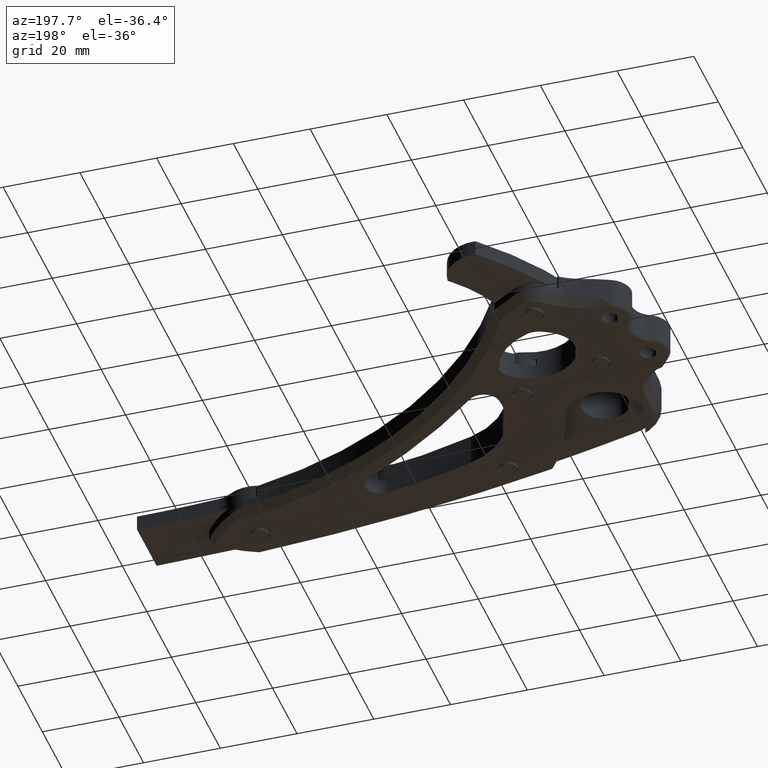
[diagram: clean part render]
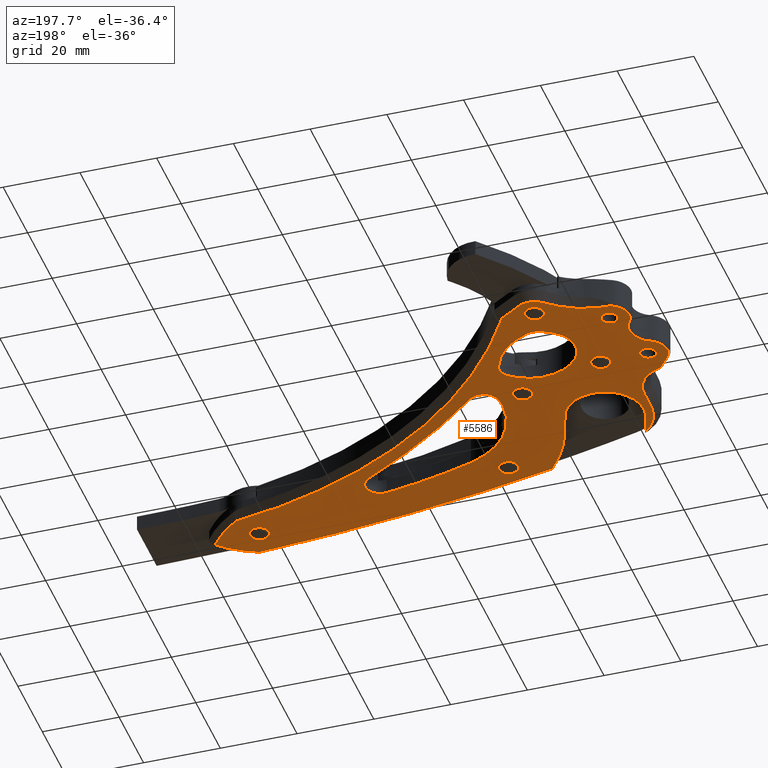
[diagram: same view with one face highlighted and labeled with its STEP entity id]
A machine part, auxiliary view. The second image highlights one B-rep face of the part: STEP entity #5586.
In plain terms, the highlighted planar face has unit normal (0, 0, 1).
Its self-contained STEP definition (entity closure, byte-faithful):
#28 = CIRCLE ( 'NONE', #5461, 0.08267716535433061731 ) ;
#29 = CARTESIAN_POINT ( 'NONE',  ( 0.7570897813879735594, 0.5923259528790508766, 0.0000000000000000000 ) ) ;
#42 = ORIENTED_EDGE ( 'NONE', *, *, #3767, .T. ) ;
#47 = CIRCLE ( 'NONE', #8968, 1.149971211732430332 ) ;
#57 = CARTESIAN_POINT ( 'NONE',  ( 3.185243714394314196, 0.1542492108641623227, 0.0000000000000000000 ) ) ;
#91 = ORIENTED_EDGE ( 'NONE', *, *, #5424, .T. ) ;
#95 = EDGE_CURVE ( 'NONE', #3956, #1817, #5602, .T. ) ;
#109 = DIRECTION ( 'NONE',  ( 0.0000000000000000000, 0.0000000000000000000, -1.000000000000000000 ) ) ;
#123 = CARTESIAN_POINT ( 'NONE',  ( -0.7122213184384932338, 0.8561135757810206526, 0.0000000000000000000 ) ) ;
#133 = AXIS2_PLACEMENT_3D ( 'NONE', #123, #3365, #2578 ) ;
#140 = CARTESIAN_POINT ( 'NONE',  ( 3.809795796438940840, -0.8201477541464271548, 0.0000000000000000000 ) ) ;
#159 = VERTEX_POINT ( 'NONE', #4506 ) ;
#171 = VERTEX_POINT ( 'NONE', #5964 ) ;
#190 = AXIS2_PLACEMENT_3D ( 'NONE', #1953, #9317, #7218 ) ;
#223 = AXIS2_PLACEMENT_3D ( 'NONE', #2445, #7726, #8127 ) ;
#232 = CIRCLE ( 'NONE', #1567, 0.09842519685039399779 ) ;
#340 = VECTOR ( 'NONE', #3633, 39.37007874015748854 ) ;
#348 = CIRCLE ( 'NONE', #3233, 0.8364771727098803122 ) ;
#350 = ORIENTED_EDGE ( 'NONE', *, *, #7735, .T. ) ;
#377 = ORIENTED_EDGE ( 'NONE', *, *, #3238, .T. ) ;
#393 = VERTEX_POINT ( 'NONE', #29 ) ;
#471 = EDGE_CURVE ( 'NONE', #821, #484, #7017, .T. ) ;
#484 = VERTEX_POINT ( 'NONE', #4433 ) ;
#538 = VERTEX_POINT ( 'NONE', #954 ) ;
#580 = CARTESIAN_POINT ( 'NONE',  ( 0.7477740345579309000, 1.090413955512788524, 0.0000000000000000000 ) ) ;
#609 = ORIENTED_EDGE ( 'NONE', *, *, #4335, .T. ) ;
#617 = DIRECTION ( 'NONE',  ( -0.3090169943749412895, 0.9510565162951555296, 0.0000000000000000000 ) ) ;
#618 = ORIENTED_EDGE ( 'NONE', *, *, #4553, .T. ) ;
#754 = EDGE_LOOP ( 'NONE', ( #7963, #1702, #3854, #91, #4201, #9229, #9529 ) ) ;
#774 = VERTEX_POINT ( 'NONE', #7919 ) ;
#777 = DIRECTION ( 'NONE',  ( 0.0000000000000000000, 0.0000000000000000000, 1.000000000000000000 ) ) ;
#785 = VERTEX_POINT ( 'NONE', #1675 ) ;
#787 = CARTESIAN_POINT ( 'NONE',  ( 0.4698172945048773030, 0.8673091202993842286, 0.0000000000000000000 ) ) ;
#821 = VERTEX_POINT ( 'NONE', #9735 ) ;
#846 = DIRECTION ( 'NONE',  ( 0.0000000000000000000, 0.0000000000000000000, 1.000000000000000000 ) ) ;
#859 = VERTEX_POINT ( 'NONE', #7512 ) ;
#868 = DIRECTION ( 'NONE',  ( 1.000000000000000000, 3.388131789017198723E-21, 0.0000000000000000000 ) ) ;
#939 = AXIS2_PLACEMENT_3D ( 'NONE', #3667, #5972, #1493 ) ;
#945 = DIRECTION ( 'NONE',  ( 1.000000000000000000, 0.0000000000000000000, 0.0000000000000000000 ) ) ;
#946 = DIRECTION ( 'NONE',  ( 1.000000000000000000, 0.0000000000000000000, 0.0000000000000000000 ) ) ;
#948 = EDGE_CURVE ( 'NONE', #7948, #8245, #8074, .T. ) ;
#954 = CARTESIAN_POINT ( 'NONE',  ( -0.3260145569330838988, 0.8560912057457989999, 0.0000000000000000000 ) ) ;
#964 = AXIS2_PLACEMENT_3D ( 'NONE', #4274, #9741, #2310 ) ;
#991 = DIRECTION ( 'NONE',  ( 0.0000000000000000000, 0.0000000000000000000, 1.000000000000000000 ) ) ;
#1008 = ORIENTED_EDGE ( 'NONE', *, *, #1176, .T. ) ;
#1010 = ORIENTED_EDGE ( 'NONE', *, *, #5360, .T. ) ;
#1012 = ORIENTED_EDGE ( 'NONE', *, *, #5697, .T. ) ;
#1019 = AXIS2_PLACEMENT_3D ( 'NONE', #6170, #7045, #5280 ) ;
#1026 = DIRECTION ( 'NONE',  ( -1.000000000000000000, 0.0000000000000000000, 0.0000000000000000000 ) ) ;
#1027 = VERTEX_POINT ( 'NONE', #8357 ) ;
#1028 = DIRECTION ( 'NONE',  ( 0.0000000000000000000, 0.0000000000000000000, 1.000000000000000000 ) ) ;
#1057 = CIRCLE ( 'NONE', #2351, 0.09842519685039433086 ) ;
#1109 = CARTESIAN_POINT ( 'NONE',  ( 0.2510675884054368590, 1.183635199904236934, 0.0000000000000000000 ) ) ;
#1145 = CARTESIAN_POINT ( 'NONE',  ( -0.6295441530841630051, 0.8561135757810206526, 0.0000000000000000000 ) ) ;
#1154 = AXIS2_PLACEMENT_3D ( 'NONE', #2347, #5466, #946 ) ;
#1176 = EDGE_CURVE ( 'NONE', #4756, #821, #2634, .T. ) ;
#1216 = CIRCLE ( 'NONE', #9758, 0.08267716535433061731 ) ;
#1232 = CARTESIAN_POINT ( 'NONE',  ( 1.071273310205732354, 0.5421025113042482468, 0.0000000000000000000 ) ) ;
#1258 = CARTESIAN_POINT ( 'NONE',  ( 0.0000000000000000000, 0.0000000000000000000, 0.0000000000000000000 ) ) ;
#1272 = AXIS2_PLACEMENT_3D ( 'NONE', #6043, #7836, #1554 ) ;
#1344 = DIRECTION ( 'NONE',  ( 0.0000000000000000000, 0.0000000000000000000, 1.000000000000000000 ) ) ;
#1345 = CIRCLE ( 'NONE', #8118, 0.09842519685039358146 ) ;
#1348 = EDGE_LOOP ( 'NONE', ( #2392, #377 ) ) ;
#1418 = DIRECTION ( 'NONE',  ( 1.000000000000000000, -2.045664476387769801E-15, 0.0000000000000000000 ) ) ;
#1474 = AXIS2_PLACEMENT_3D ( 'NONE', #1109, #3062, #9643 ) ;
#1490 = ORIENTED_EDGE ( 'NONE', *, *, #7768, .T. ) ;
#1493 = DIRECTION ( 'NONE',  ( 1.000000000000000000, 0.0000000000000000000, 0.0000000000000000000 ) ) ;
#1495 = VERTEX_POINT ( 'NONE', #8562 ) ;
#1516 = EDGE_CURVE ( 'NONE', #2557, #4297, #6252, .T. ) ;
#1526 = DIRECTION ( 'NONE',  ( 1.000000000000000000, 0.0000000000000000000, 0.0000000000000000000 ) ) ;
#1528 = EDGE_CURVE ( 'NONE', #3202, #4008, #4751, .T. ) ;
#1542 = CIRCLE ( 'NONE', #4605, 0.09842519685039365085 ) ;
#1550 = CIRCLE ( 'NONE', #9135, 0.3937007874015751030 ) ;
#1554 = DIRECTION ( 'NONE',  ( 1.000000000000000000, 0.0000000000000000000, 0.0000000000000000000 ) ) ;
#1555 = DIRECTION ( 'NONE',  ( 0.0000000000000000000, -0.0000000000000000000, 1.000000000000000000 ) ) ;
#1567 = AXIS2_PLACEMENT_3D ( 'NONE', #4208, #2040, #6515 ) ;
#1568 = DIRECTION ( 'NONE',  ( 0.0000000000000000000, 0.0000000000000000000, -1.000000000000000000 ) ) ;
#1575 = EDGE_CURVE ( 'NONE', #8242, #1817, #2293, .T. ) ;
#1586 = AXIS2_PLACEMENT_3D ( 'NONE', #140, #8422, #7704 ) ;
#1598 = VECTOR ( 'NONE', #2454, 39.37007874015748143 ) ;
#1650 = CARTESIAN_POINT ( 'NONE',  ( -0.8295397508085289306, 0.2422604601360806575, 0.0000000000000000000 ) ) ;
#1666 = DIRECTION ( 'NONE',  ( -0.0000000000000000000, -0.0000000000000000000, -1.000000000000000000 ) ) ;
#1675 = CARTESIAN_POINT ( 'NONE',  ( -0.6979832910037895299, 1.409456169075488319, 0.0000000000000000000 ) ) ;
#1686 = FACE_BOUND ( 'NONE', #5032, .T. ) ;
#1693 = EDGE_LOOP ( 'NONE', ( #4562, #3643 ) ) ;
#1702 = ORIENTED_EDGE ( 'NONE', *, *, #2967, .T. ) ;
#1747 = DIRECTION ( 'NONE',  ( 0.0000000000000000000, 0.0000000000000000000, 1.000000000000000000 ) ) ;
#1817 = VERTEX_POINT ( 'NONE', #3635 ) ;
#1818 = CARTESIAN_POINT ( 'NONE',  ( -0.3937007874015747699, -1.333910153156377246E-21, 0.0000000000000000000 ) ) ;
#1905 = CARTESIAN_POINT ( 'NONE',  ( -0.6214355804752841328, 1.700027296306607205, 0.0000000000000000000 ) ) ;
#1929 = FACE_BOUND ( 'NONE', #1693, .T. ) ;
#1931 = CARTESIAN_POINT ( 'NONE',  ( 0.0000000000000000000, 0.0000000000000000000, 0.0000000000000000000 ) ) ;
#1934 = VERTEX_POINT ( 'NONE', #7466 ) ;
#1943 = ORIENTED_EDGE ( 'NONE', *, *, #6217, .T. ) ;
#1953 = CARTESIAN_POINT ( 'NONE',  ( 0.1453584754090656295, 1.816308304809195917, 0.0000000000000000000 ) ) ;
#2040 = DIRECTION ( 'NONE',  ( 0.0000000000000000000, 0.0000000000000000000, 1.000000000000000000 ) ) ;
#2058 = CIRCLE ( 'NONE', #5918, 0.1500000000000002998 ) ;
#2133 = DIRECTION ( 'NONE',  ( 1.000000000000000000, 1.953895528049144136E-14, 0.0000000000000000000 ) ) ;
#2134 = CARTESIAN_POINT ( 'NONE',  ( 1.743043630582140402, 0.4603334760457821750, 0.0000000000000000000 ) ) ;
#2135 = DIRECTION ( 'NONE',  ( 1.000000000000000000, 0.0000000000000000000, 0.0000000000000000000 ) ) ;
#2143 = CARTESIAN_POINT ( 'NONE',  ( 1.157574541934061951, -0.5242233746016295992, 0.0000000000000000000 ) ) ;
#2163 = AXIS2_PLACEMENT_3D ( 'NONE', #1258, #2560, #868 ) ;
#2185 = FACE_BOUND ( 'NONE', #754, .T. ) ;
#2201 = ORIENTED_EDGE ( 'NONE', *, *, #8317, .T. ) ;
#2216 = AXIS2_PLACEMENT_3D ( 'NONE', #6564, #8853, #3779 ) ;
#2224 = DIRECTION ( 'NONE',  ( 1.000000000000000000, 0.0000000000000000000, 0.0000000000000000000 ) ) ;
#2293 = CIRCLE ( 'NONE', #6882, 1.574803149606300412 ) ;
#2310 = DIRECTION ( 'NONE',  ( 1.000000000000000000, 0.0000000000000000000, 0.0000000000000000000 ) ) ;
#2347 = CARTESIAN_POINT ( 'NONE',  ( 0.5996707364089126635, 1.036883987145292174, 0.0000000000000000000 ) ) ;
#2351 = AXIS2_PLACEMENT_3D ( 'NONE', #2432, #1344, #945 ) ;
#2365 = AXIS2_PLACEMENT_3D ( 'NONE', #6592, #4615, #4939 ) ;
#2392 = ORIENTED_EDGE ( 'NONE', *, *, #7324, .T. ) ;
#2396 = CARTESIAN_POINT ( 'NONE',  ( -0.5315916858345430818, 1.520990545755357193, 0.0000000000000000000 ) ) ;
#2404 = EDGE_CURVE ( 'NONE', #1027, #785, #7453, .T. ) ;
#2432 = CARTESIAN_POINT ( 'NONE',  ( 3.809795796438940840, -0.8201477541464271548, 0.0000000000000000000 ) ) ;
#2445 = CARTESIAN_POINT ( 'NONE',  ( -0.7122213184384932338, 0.8561135757810206526, 0.0000000000000000000 ) ) ;
#2454 = DIRECTION ( 'NONE',  ( 0.3090169943749421222, -0.9510565162951553075, 0.0000000000000000000 ) ) ;
#2474 = VERTEX_POINT ( 'NONE', #3953 ) ;
#2500 = DIRECTION ( 'NONE',  ( 0.0000000000000000000, 0.0000000000000000000, 1.000000000000000000 ) ) ;
#2557 = VERTEX_POINT ( 'NONE', #8019 ) ;
#2560 = DIRECTION ( 'NONE',  ( -0.0000000000000000000, -0.0000000000000000000, -1.000000000000000000 ) ) ;
#2578 = DIRECTION ( 'NONE',  ( 1.000000000000000000, 0.0000000000000000000, 0.0000000000000000000 ) ) ;
#2589 = CARTESIAN_POINT ( 'NONE',  ( 1.059149345083668647, -0.5242233746016295992, 0.0000000000000000000 ) ) ;
#2613 = CIRCLE ( 'NONE', #7649, 0.3543307086614178036 ) ;
#2634 = CIRCLE ( 'NONE', #2736, 7.086614177537938986 ) ;
#2647 = FACE_OUTER_BOUND ( 'NONE', #7366, .T. ) ;
#2714 = CARTESIAN_POINT ( 'NONE',  ( 1.255999738784455255, -0.5242233746016295992, 0.0000000000000000000 ) ) ;
#2736 = AXIS2_PLACEMENT_3D ( 'NONE', #8349, #109, #6501 ) ;
#2807 = ORIENTED_EDGE ( 'NONE', *, *, #948, .F. ) ;
#2833 = DIRECTION ( 'NONE',  ( 1.000000000000000000, 0.0000000000000000000, 0.0000000000000000000 ) ) ;
#2869 = DIRECTION ( 'NONE',  ( -0.0000000000000000000, -0.0000000000000000000, -1.000000000000000000 ) ) ;
#2880 = CARTESIAN_POINT ( 'NONE',  ( 3.185243714394314196, 0.1542492108641623227, 0.0000000000000000000 ) ) ;
#2897 = CARTESIAN_POINT ( 'NONE',  ( -0.2275893600826904006, 0.8560912057457989999, 0.0000000000000000000 ) ) ;
#2940 = CARTESIAN_POINT ( 'NONE',  ( 0.4595938631329188895, -0.1404419555242772677, 0.0000000000000000000 ) ) ;
#2949 = DIRECTION ( 'NONE',  ( 0.0000000000000000000, 0.0000000000000000000, 1.000000000000000000 ) ) ;
#2967 = EDGE_CURVE ( 'NONE', #4008, #2557, #8734, .T. ) ;
#3010 = CIRCLE ( 'NONE', #7764, 0.09842519685039324839 ) ;
#3012 = VERTEX_POINT ( 'NONE', #6035 ) ;
#3062 = DIRECTION ( 'NONE',  ( 0.0000000000000000000, 0.0000000000000000000, 1.000000000000000000 ) ) ;
#3079 = CARTESIAN_POINT ( 'NONE',  ( 0.0000000000000000000, 0.0000000000000000000, 0.0000000000000000000 ) ) ;
#3085 = CARTESIAN_POINT ( 'NONE',  ( -0.1291641632322969024, 0.8560912057457989999, 0.0000000000000000000 ) ) ;
#3125 = EDGE_CURVE ( 'NONE', #9390, #171, #7790, .T. ) ;
#3173 = EDGE_CURVE ( 'NONE', #171, #3202, #9314, .T. ) ;
#3177 = CARTESIAN_POINT ( 'NONE',  ( 0.2437836722594595718, 1.816308304809195917, 0.0000000000000000000 ) ) ;
#3189 = VERTEX_POINT ( 'NONE', #4231 ) ;
#3200 = DIRECTION ( 'NONE',  ( 1.000000000000000000, 0.0000000000000000000, 0.0000000000000000000 ) ) ;
#3202 = VERTEX_POINT ( 'NONE', #5276 ) ;
#3233 = AXIS2_PLACEMENT_3D ( 'NONE', #8740, #6386, #8134 ) ;
#3238 = EDGE_CURVE ( 'NONE', #5357, #3453, #1057, .T. ) ;
#3294 = EDGE_CURVE ( 'NONE', #159, #7948, #6343, .T. ) ;
#3307 = AXIS2_PLACEMENT_3D ( 'NONE', #7368, #991, #3931 ) ;
#3310 = AXIS2_PLACEMENT_3D ( 'NONE', #3079, #1568, #5392 ) ;
#3365 = DIRECTION ( 'NONE',  ( 0.0000000000000000000, 0.0000000000000000000, 1.000000000000000000 ) ) ;
#3390 = ORIENTED_EDGE ( 'NONE', *, *, #7187, .T. ) ;
#3404 = CARTESIAN_POINT ( 'NONE',  ( -0.4489145204802125200, 1.520990545755357193, 0.0000000000000000000 ) ) ;
#3453 = VERTEX_POINT ( 'NONE', #7884 ) ;
#3461 = CARTESIAN_POINT ( 'NONE',  ( 0.04693327855867171494, 1.816308304809195917, 0.0000000000000000000 ) ) ;
#3471 = VERTEX_POINT ( 'NONE', #1145 ) ;
#3535 = EDGE_CURVE ( 'NONE', #6305, #9390, #4945, .T. ) ;
#3618 = CARTESIAN_POINT ( 'NONE',  ( 0.6586645845375800334, 0.5923259528790508766, 0.0000000000000000000 ) ) ;
#3628 = DIRECTION ( 'NONE',  ( 1.000000000000000000, 0.0000000000000000000, 0.0000000000000000000 ) ) ;
#3633 = DIRECTION ( 'NONE',  ( 0.8364794856834462111, -0.5479982390763287192, 0.0000000000000000000 ) ) ;
#3635 = CARTESIAN_POINT ( 'NONE',  ( 0.7579249503705006719, -0.6743179917541789470, 0.0000000000000000000 ) ) ;
#3636 = CARTESIAN_POINT ( 'NONE',  ( -0.5975223029967786648, 2.576600349123360445, 0.0000000000000000000 ) ) ;
#3643 = ORIENTED_EDGE ( 'NONE', *, *, #9509, .T. ) ;
#3666 = DIRECTION ( 'NONE',  ( 1.000000000000000000, 0.0000000000000000000, 0.0000000000000000000 ) ) ;
#3667 = CARTESIAN_POINT ( 'NONE',  ( 3.300288138568478136, 5.284242856078850359, 0.0000000000000000000 ) ) ;
#3695 = DIRECTION ( 'NONE',  ( -0.0000000000000000000, -0.0000000000000000000, -1.000000000000000000 ) ) ;
#3701 = FACE_BOUND ( 'NONE', #4999, .T. ) ;
#3729 = CARTESIAN_POINT ( 'NONE',  ( 0.4732308865129680187, 1.836822568178638759, 0.0000000000000000000 ) ) ;
#3745 = EDGE_LOOP ( 'NONE', ( #1012, #7375 ) ) ;
#3767 = EDGE_CURVE ( 'NONE', #3012, #3471, #7060, .T. ) ;
#3776 = DIRECTION ( 'NONE',  ( 1.000000000000000000, 0.0000000000000000000, 0.0000000000000000000 ) ) ;
#3779 = DIRECTION ( 'NONE',  ( 1.000000000000000000, 6.176506603871220977E-15, 0.0000000000000000000 ) ) ;
#3854 = ORIENTED_EDGE ( 'NONE', *, *, #1516, .T. ) ;
#3879 = DIRECTION ( 'NONE',  ( -0.0000000000000000000, -0.0000000000000000000, -1.000000000000000000 ) ) ;
#3900 = CARTESIAN_POINT ( 'NONE',  ( 3.903359180932122641, -1.112918685400203334, 0.0000000000000000000 ) ) ;
#3920 = VERTEX_POINT ( 'NONE', #6768 ) ;
#3926 = DIRECTION ( 'NONE',  ( 1.000000000000000000, 0.0000000000000000000, 0.0000000000000000000 ) ) ;
#3931 = DIRECTION ( 'NONE',  ( 1.000000000000000000, 0.0000000000000000000, 0.0000000000000000000 ) ) ;
#3932 = VERTEX_POINT ( 'NONE', #2589 ) ;
#3953 = CARTESIAN_POINT ( 'NONE',  ( -0.6002771942893025958, 1.710462998019637082, 0.0000000000000000000 ) ) ;
#3956 = VERTEX_POINT ( 'NONE', #3900 ) ;
#4008 = VERTEX_POINT ( 'NONE', #7023 ) ;
#4079 = ORIENTED_EDGE ( 'NONE', *, *, #2404, .T. ) ;
#4085 = EDGE_CURVE ( 'NONE', #9592, #393, #8713, .T. ) ;
#4164 = AXIS2_PLACEMENT_3D ( 'NONE', #787, #5913, #2224 ) ;
#4176 = AXIS2_PLACEMENT_3D ( 'NONE', #4485, #2869, #5038 ) ;
#4201 = ORIENTED_EDGE ( 'NONE', *, *, #3535, .T. ) ;
#4208 = CARTESIAN_POINT ( 'NONE',  ( 0.1453584754090656295, 1.816308304809195917, 0.0000000000000000000 ) ) ;
#4231 = CARTESIAN_POINT ( 'NONE',  ( 0.007797715156651996264, 1.957093144947546604, 0.0000000000000000000 ) ) ;
#4260 = CIRCLE ( 'NONE', #2216, 1.149971211732420340 ) ;
#4270 = CARTESIAN_POINT ( 'NONE',  ( 1.957320660448124139, 0.3461989804992516850, 0.0000000000000000000 ) ) ;
#4274 = CARTESIAN_POINT ( 'NONE',  ( 0.6586645845375800334, 0.5923259528790508766, 0.0000000000000000000 ) ) ;
#4297 = VERTEX_POINT ( 'NONE', #5241 ) ;
#4335 = EDGE_CURVE ( 'NONE', #4875, #7074, #9054, .T. ) ;
#4343 = VECTOR ( 'NONE', #617, 39.37007874015748854 ) ;
#4433 = CARTESIAN_POINT ( 'NONE',  ( 0.9126951351013545821, 0.5614049186866851837, 0.0000000000000000000 ) ) ;
#4451 = VERTEX_POINT ( 'NONE', #1905 ) ;
#4485 = CARTESIAN_POINT ( 'NONE',  ( 5.029460358332304537, 18.46101461764844487, 0.0000000000000000000 ) ) ;
#4506 = CARTESIAN_POINT ( 'NONE',  ( -0.2937314297079321457, -0.3700301252636425953, 0.0000000000000000000 ) ) ;
#4553 = EDGE_CURVE ( 'NONE', #3189, #9024, #9170, .T. ) ;
#4562 = ORIENTED_EDGE ( 'NONE', *, *, #4085, .T. ) ;
#4600 = LINE ( 'NONE', #5624, #340 ) ;
#4605 = AXIS2_PLACEMENT_3D ( 'NONE', #3618, #2949, #3776 ) ;
#4615 = DIRECTION ( 'NONE',  ( -0.0000000000000000000, -0.0000000000000000000, -1.000000000000000000 ) ) ;
#4652 = VERTEX_POINT ( 'NONE', #3085 ) ;
#4730 = DIRECTION ( 'NONE',  ( 0.0000000000000000000, 0.0000000000000000000, 1.000000000000000000 ) ) ;
#4751 = CIRCLE ( 'NONE', #4164, 0.7086614173228351632 ) ;
#4756 = VERTEX_POINT ( 'NONE', #8231 ) ;
#4789 = ORIENTED_EDGE ( 'NONE', *, *, #3294, .F. ) ;
#4800 = CARTESIAN_POINT ( 'NONE',  ( -0.5315916858345430818, 1.520990545755357193, 0.0000000000000000000 ) ) ;
#4803 = EDGE_CURVE ( 'NONE', #859, #8242, #9375, .T. ) ;
#4842 = CIRCLE ( 'NONE', #2163, 0.4724409448818899793 ) ;
#4852 = AXIS2_PLACEMENT_3D ( 'NONE', #3636, #8108, #2135 ) ;
#4863 = ORIENTED_EDGE ( 'NONE', *, *, #4803, .F. ) ;
#4875 = VERTEX_POINT ( 'NONE', #6092 ) ;
#4882 = ORIENTED_EDGE ( 'NONE', *, *, #5299, .T. ) ;
#4918 = DIRECTION ( 'NONE',  ( 1.000000000000000000, 0.0000000000000000000, 0.0000000000000000000 ) ) ;
#4939 = DIRECTION ( 'NONE',  ( 1.000000000000000000, -1.363776317591853108E-15, 0.0000000000000000000 ) ) ;
#4945 = CIRCLE ( 'NONE', #1154, 0.1574802985647475728 ) ;
#4959 = EDGE_CURVE ( 'NONE', #8286, #1934, #6663, .T. ) ;
#4999 = EDGE_LOOP ( 'NONE', ( #1943, #9234 ) ) ;
#5005 = ORIENTED_EDGE ( 'NONE', *, *, #8516, .T. ) ;
#5032 = EDGE_LOOP ( 'NONE', ( #42, #6319 ) ) ;
#5038 = DIRECTION ( 'NONE',  ( 1.000000000000000000, 0.0000000000000000000, 0.0000000000000000000 ) ) ;
#5086 = DIRECTION ( 'NONE',  ( 0.0000000000000000000, 0.0000000000000000000, 1.000000000000000000 ) ) ;
#5142 = ORIENTED_EDGE ( 'NONE', *, *, #7390, .T. ) ;
#5174 = CARTESIAN_POINT ( 'NONE',  ( 0.1460438376730443522, 0.1706298710314975986, 0.0000000000000000000 ) ) ;
#5198 = CIRCLE ( 'NONE', #3307, 0.09842519685039324839 ) ;
#5227 = CIRCLE ( 'NONE', #1019, 4.803149606299218277 ) ;
#5241 = CARTESIAN_POINT ( 'NONE',  ( -0.01254893517055393273, 0.9951541362393566681, 0.0000000000000000000 ) ) ;
#5276 = CARTESIAN_POINT ( 'NONE',  ( 0.1708816122455786846, 1.509834187728021915, 0.0000000000000000000 ) ) ;
#5280 = DIRECTION ( 'NONE',  ( 1.000000000000000000, 0.0000000000000000000, 0.0000000000000000000 ) ) ;
#5299 = EDGE_CURVE ( 'NONE', #9266, #5440, #8091, .T. ) ;
#5322 = DIRECTION ( 'NONE',  ( 1.000000000000000000, 0.0000000000000000000, 0.0000000000000000000 ) ) ;
#5342 = ORIENTED_EDGE ( 'NONE', *, *, #6410, .T. ) ;
#5357 = VERTEX_POINT ( 'NONE', #6889 ) ;
#5360 = EDGE_CURVE ( 'NONE', #5440, #4756, #2058, .T. ) ;
#5370 = CARTESIAN_POINT ( 'NONE',  ( -0.3744316993288016038, -0.1216602340058825088, 0.0000000000000000000 ) ) ;
#5372 = EDGE_CURVE ( 'NONE', #774, #3956, #47, .T. ) ;
#5379 = EDGE_CURVE ( 'NONE', #3471, #3012, #7618, .T. ) ;
#5392 = DIRECTION ( 'NONE',  ( -1.000000000000000000, -3.388131789017198347E-21, 0.0000000000000000000 ) ) ;
#5424 = EDGE_CURVE ( 'NONE', #4297, #6305, #9366, .T. ) ;
#5440 = VERTEX_POINT ( 'NONE', #8040 ) ;
#5461 = AXIS2_PLACEMENT_3D ( 'NONE', #2396, #7634, #7315 ) ;
#5466 = DIRECTION ( 'NONE',  ( 0.0000000000000000000, 0.0000000000000000000, 1.000000000000000000 ) ) ;
#5488 = DIRECTION ( 'NONE',  ( 1.000000000000000000, 0.0000000000000000000, 0.0000000000000000000 ) ) ;
#5586 = ADVANCED_FACE ( 'NONE', ( #2647, #2185, #5939, #7957, #1929, #9700, #7724, #5693, #3701, #1686 ), #6538, .F. ) ;
#5602 = CIRCLE ( 'NONE', #4176, 19.60629921259844011 ) ;
#5624 = CARTESIAN_POINT ( 'NONE',  ( 3.142094246750513076, 0.08838468443240092565, 0.0000000000000000000 ) ) ;
#5625 = CARTESIAN_POINT ( 'NONE',  ( 1.486071726422548478, -0.3356938481946044606, 0.0000000000000000000 ) ) ;
#5640 = EDGE_CURVE ( 'NONE', #8808, #7128, #5227, .T. ) ;
#5693 = FACE_BOUND ( 'NONE', #1348, .T. ) ;
#5697 = EDGE_CURVE ( 'NONE', #3932, #9134, #3010, .T. ) ;
#5780 = CIRCLE ( 'NONE', #9275, 0.09842519685039399779 ) ;
#5804 = AXIS2_PLACEMENT_3D ( 'NONE', #8937, #4730, #3926 ) ;
#5877 = EDGE_CURVE ( 'NONE', #4451, #2474, #9352, .T. ) ;
#5905 = EDGE_CURVE ( 'NONE', #4652, #538, #1345, .T. ) ;
#5913 = DIRECTION ( 'NONE',  ( 0.0000000000000000000, 0.0000000000000000000, 1.000000000000000000 ) ) ;
#5918 = AXIS2_PLACEMENT_3D ( 'NONE', #9285, #8666, #9637 ) ;
#5939 = FACE_BOUND ( 'NONE', #9737, .T. ) ;
#5964 = CARTESIAN_POINT ( 'NONE',  ( 0.3203078328075648629, 1.516672676733199943, 0.0000000000000000000 ) ) ;
#5965 = CARTESIAN_POINT ( 'NONE',  ( -0.4752941509376885643, 0.2344947616709118221, 0.0000000000000000000 ) ) ;
#5972 = DIRECTION ( 'NONE',  ( 0.0000000000000000000, 0.0000000000000000000, 1.000000000000000000 ) ) ;
#6035 = CARTESIAN_POINT ( 'NONE',  ( -0.7948984837928234626, 0.8561135757810206526, 0.0000000000000000000 ) ) ;
#6042 = ORIENTED_EDGE ( 'NONE', *, *, #8345, .F. ) ;
#6043 = CARTESIAN_POINT ( 'NONE',  ( 0.08130912104371064431, 0.8495290488859255085, 0.0000000000000000000 ) ) ;
#6078 = ORIENTED_EDGE ( 'NONE', *, *, #8664, .T. ) ;
#6092 = CARTESIAN_POINT ( 'NONE',  ( -0.4718879576880469773, -0.02285173494283518000, 0.0000000000000000000 ) ) ;
#6116 = AXIS2_PLACEMENT_3D ( 'NONE', #2134, #7211, #1526 ) ;
#6127 = CIRCLE ( 'NONE', #6116, 0.8364771727098803122 ) ;
#6139 = ORIENTED_EDGE ( 'NONE', *, *, #1575, .F. ) ;
#6145 = DIRECTION ( 'NONE',  ( 1.000000000000000000, 0.0000000000000000000, 0.0000000000000000000 ) ) ;
#6170 = CARTESIAN_POINT ( 'NONE',  ( 4.655460665712401358, 4.198855636209188447, 0.0000000000000000000 ) ) ;
#6173 = EDGE_LOOP ( 'NONE', ( #6759, #9502 ) ) ;
#6185 = ORIENTED_EDGE ( 'NONE', *, *, #471, .T. ) ;
#6205 = CARTESIAN_POINT ( 'NONE',  ( 0.1453584754090656295, 1.816308304809195917, 0.0000000000000000000 ) ) ;
#6217 = EDGE_CURVE ( 'NONE', #1495, #9231, #1216, .T. ) ;
#6252 = CIRCLE ( 'NONE', #1474, 0.3240660162104870290 ) ;
#6262 = CARTESIAN_POINT ( 'NONE',  ( 0.2539193017620497428, 1.331355002331179316, 0.0000000000000000000 ) ) ;
#6305 = VERTEX_POINT ( 'NONE', #6926 ) ;
#6319 = ORIENTED_EDGE ( 'NONE', *, *, #5379, .T. ) ;
#6321 = ORIENTED_EDGE ( 'NONE', *, *, #5372, .T. ) ;
#6343 = LINE ( 'NONE', #8403, #4343 ) ;
#6386 = DIRECTION ( 'NONE',  ( 0.0000000000000000000, 0.0000000000000000000, 1.000000000000000000 ) ) ;
#6410 = EDGE_CURVE ( 'NONE', #7128, #774, #4260, .T. ) ;
#6444 = VERTEX_POINT ( 'NONE', #3177 ) ;
#6493 = CARTESIAN_POINT ( 'NONE',  ( 0.5602393876871865075, 0.5923259528790508766, 0.0000000000000000000 ) ) ;
#6495 = EDGE_CURVE ( 'NONE', #9231, #1495, #28, .T. ) ;
#6501 = DIRECTION ( 'NONE',  ( 1.000000000000000000, 0.0000000000000000000, 0.0000000000000000000 ) ) ;
#6515 = DIRECTION ( 'NONE',  ( 1.000000000000000000, 0.0000000000000000000, 0.0000000000000000000 ) ) ;
#6538 = PLANE ( 'NONE',  #8954 ) ;
#6564 = CARTESIAN_POINT ( 'NONE',  ( 3.327836364812030379, -1.512623469216467065, 0.0000000000000000000 ) ) ;
#6578 = AXIS2_PLACEMENT_3D ( 'NONE', #9676, #1666, #5322 ) ;
#6592 = CARTESIAN_POINT ( 'NONE',  ( -0.5315916858345430818, 1.520990545755357193, 0.0000000000000000000 ) ) ;
#6663 = CIRCLE ( 'NONE', #6578, 1.711163680575129131 ) ;
#6709 = DIRECTION ( 'NONE',  ( 1.000000000000000000, 0.0000000000000000000, 0.0000000000000000000 ) ) ;
#6742 = VERTEX_POINT ( 'NONE', #3461 ) ;
#6759 = ORIENTED_EDGE ( 'NONE', *, *, #9501, .T. ) ;
#6768 = CARTESIAN_POINT ( 'NONE',  ( 0.9065664578722608669, 0.4603334760457821750, 0.0000000000000000000 ) ) ;
#6882 = AXIS2_PLACEMENT_3D ( 'NONE', #4270, #5086, #1026 ) ;
#6889 = CARTESIAN_POINT ( 'NONE',  ( 3.908220993289335254, -0.8201477541464271548, 0.0000000000000000000 ) ) ;
#6926 = CARTESIAN_POINT ( 'NONE',  ( 0.7064164038756690633, 0.9211022519774192396, 0.0000000000000000000 ) ) ;
#6934 = CARTESIAN_POINT ( 'NONE',  ( -0.9105511828277134123, 1.266969249181776558, 0.0000000000000000000 ) ) ;
#6947 = DIRECTION ( 'NONE',  ( -1.000000000000000000, -3.388131789017198347E-21, 0.0000000000000000000 ) ) ;
#6951 = AXIS2_PLACEMENT_3D ( 'NONE', #6963, #846, #3200 ) ;
#6963 = CARTESIAN_POINT ( 'NONE',  ( -0.2275893600826904006, 0.8560912057457989999, 0.0000000000000000000 ) ) ;
#7017 = CIRCLE ( 'NONE', #8477, 0.1597486124299352661 ) ;
#7023 = CARTESIAN_POINT ( 'NONE',  ( 0.06674571248640293053, 1.450176432962508200, 0.0000000000000000000 ) ) ;
#7045 = DIRECTION ( 'NONE',  ( 0.0000000000000000000, 0.0000000000000000000, 1.000000000000000000 ) ) ;
#7060 = CIRCLE ( 'NONE', #133, 0.08267716535433021485 ) ;
#7074 = VERTEX_POINT ( 'NONE', #5965 ) ;
#7128 = VERTEX_POINT ( 'NONE', #7862 ) ;
#7187 = EDGE_CURVE ( 'NONE', #484, #3920, #348, .T. ) ;
#7202 = CIRCLE ( 'NONE', #1586, 0.09842519685039433086 ) ;
#7211 = DIRECTION ( 'NONE',  ( 0.0000000000000000000, 0.0000000000000000000, 1.000000000000000000 ) ) ;
#7218 = DIRECTION ( 'NONE',  ( 1.000000000000000000, -1.387899551432165351E-15, 0.0000000000000000000 ) ) ;
#7271 = AXIS2_PLACEMENT_3D ( 'NONE', #5174, #9711, #3666 ) ;
#7272 = AXIS2_PLACEMENT_3D ( 'NONE', #6934, #8293, #7794 ) ;
#7315 = DIRECTION ( 'NONE',  ( 1.000000000000000000, 0.0000000000000000000, 0.0000000000000000000 ) ) ;
#7324 = EDGE_CURVE ( 'NONE', #3453, #5357, #7202, .T. ) ;
#7326 = AXIS2_PLACEMENT_3D ( 'NONE', #9534, #777, #5488 ) ;
#7366 = EDGE_LOOP ( 'NONE', ( #1490, #7602, #5142, #618, #7969, #9616, #5342, #6321, #7934, #6139, #4863, #6042, #2807, #4789, #7616, #609, #5005, #9159, #6078, #4079 ) ) ;
#7368 = CARTESIAN_POINT ( 'NONE',  ( 1.157574541934061951, -0.5242233746016295992, 0.0000000000000000000 ) ) ;
#7375 = ORIENTED_EDGE ( 'NONE', *, *, #8214, .T. ) ;
#7390 = EDGE_CURVE ( 'NONE', #2474, #3189, #8743, .T. ) ;
#7433 = DIRECTION ( 'NONE',  ( 1.000000000000000000, 0.0000000000000000000, 0.0000000000000000000 ) ) ;
#7453 = CIRCLE ( 'NONE', #7272, 0.2559055118110263316 ) ;
#7459 = CIRCLE ( 'NONE', #7780, 0.2003149606299187702 ) ;
#7466 = CARTESIAN_POINT ( 'NONE',  ( -0.8764621822014859731, 0.7414356697897082071, 0.0000000000000000000 ) ) ;
#7474 = DIRECTION ( 'NONE',  ( 0.0000000000000000000, 0.0000000000000000000, 1.000000000000000000 ) ) ;
#7512 = CARTESIAN_POINT ( 'NONE',  ( 0.3744316993288013262, 0.1216602340058868803, 0.0000000000000000000 ) ) ;
#7532 = EDGE_CURVE ( 'NONE', #6742, #6444, #232, .T. ) ;
#7545 = DIRECTION ( 'NONE',  ( 1.000000000000000000, 0.0000000000000000000, 0.0000000000000000000 ) ) ;
#7547 = CARTESIAN_POINT ( 'NONE',  ( -0.7566375322048555230, 0.5890103954254245489, 0.0000000000000000000 ) ) ;
#7602 = ORIENTED_EDGE ( 'NONE', *, *, #5877, .T. ) ;
#7616 = ORIENTED_EDGE ( 'NONE', *, *, #8471, .T. ) ;
#7618 = CIRCLE ( 'NONE', #223, 0.08267716535433021485 ) ;
#7634 = DIRECTION ( 'NONE',  ( 0.0000000000000000000, 0.0000000000000000000, 1.000000000000000000 ) ) ;
#7649 = AXIS2_PLACEMENT_3D ( 'NONE', #1650, #9305, #4918 ) ;
#7704 = DIRECTION ( 'NONE',  ( 1.000000000000000000, 0.0000000000000000000, 0.0000000000000000000 ) ) ;
#7724 = FACE_BOUND ( 'NONE', #9289, .T. ) ;
#7726 = DIRECTION ( 'NONE',  ( 0.0000000000000000000, 0.0000000000000000000, 1.000000000000000000 ) ) ;
#7735 = EDGE_CURVE ( 'NONE', #3920, #9266, #6127, .T. ) ;
#7747 = EDGE_CURVE ( 'NONE', #9024, #8808, #4600, .T. ) ;
#7764 = AXIS2_PLACEMENT_3D ( 'NONE', #2143, #1747, #7545 ) ;
#7768 = EDGE_CURVE ( 'NONE', #785, #4451, #8381, .T. ) ;
#7780 = AXIS2_PLACEMENT_3D ( 'NONE', #7810, #3695, #1418 ) ;
#7790 = CIRCLE ( 'NONE', #1272, 0.7086614173228353852 ) ;
#7794 = DIRECTION ( 'NONE',  ( 1.000000000000000000, 0.0000000000000000000, 0.0000000000000000000 ) ) ;
#7810 = CARTESIAN_POINT ( 'NONE',  ( -0.7122213184384932338, 0.8561135757810206526, 0.0000000000000000000 ) ) ;
#7836 = DIRECTION ( 'NONE',  ( 0.0000000000000000000, 0.0000000000000000000, 1.000000000000000000 ) ) ;
#7862 = CARTESIAN_POINT ( 'NONE',  ( 3.963267693860252017, -0.5541555178079006216, 0.0000000000000000000 ) ) ;
#7884 = CARTESIAN_POINT ( 'NONE',  ( 3.711370599588546426, -0.8201477541464271548, 0.0000000000000000000 ) ) ;
#7919 = CARTESIAN_POINT ( 'NONE',  ( 4.279851246821699817, -0.8675642066324369406, 0.0000000000000000000 ) ) ;
#7934 = ORIENTED_EDGE ( 'NONE', *, *, #95, .T. ) ;
#7948 = VERTEX_POINT ( 'NONE', #5370 ) ;
#7957 = FACE_BOUND ( 'NONE', #6173, .T. ) ;
#7963 = ORIENTED_EDGE ( 'NONE', *, *, #1528, .T. ) ;
#7969 = ORIENTED_EDGE ( 'NONE', *, *, #7747, .T. ) ;
#8019 = CARTESIAN_POINT ( 'NONE',  ( -0.07299842780504992024, 1.183635199904236934, 0.0000000000000000000 ) ) ;
#8040 = CARTESIAN_POINT ( 'NONE',  ( 2.417622231134564537, -0.5549326547268929044, 0.0000000000000000000 ) ) ;
#8074 = CIRCLE ( 'NONE', #3310, 0.3937007874015751030 ) ;
#8091 = CIRCLE ( 'NONE', #939, 5.905511811023636426 ) ;
#8108 = DIRECTION ( 'NONE',  ( 0.0000000000000000000, 0.0000000000000000000, 1.000000000000000000 ) ) ;
#8118 = AXIS2_PLACEMENT_3D ( 'NONE', #2897, #8166, #3628 ) ;
#8127 = DIRECTION ( 'NONE',  ( 1.000000000000000000, 0.0000000000000000000, 0.0000000000000000000 ) ) ;
#8132 = DIRECTION ( 'NONE',  ( -0.0000000000000000000, -0.0000000000000000000, -1.000000000000000000 ) ) ;
#8134 = DIRECTION ( 'NONE',  ( 1.000000000000000000, 0.0000000000000000000, 0.0000000000000000000 ) ) ;
#8166 = DIRECTION ( 'NONE',  ( 0.0000000000000000000, 0.0000000000000000000, 1.000000000000000000 ) ) ;
#8209 = ORIENTED_EDGE ( 'NONE', *, *, #7532, .T. ) ;
#8214 = EDGE_CURVE ( 'NONE', #9134, #3932, #5198, .T. ) ;
#8231 = CARTESIAN_POINT ( 'NONE',  ( 2.511516228115925120, -0.2747410424055570233, 0.0000000000000000000 ) ) ;
#8242 = VERTEX_POINT ( 'NONE', #2940 ) ;
#8245 = VERTEX_POINT ( 'NONE', #1818 ) ;
#8276 = DIRECTION ( 'NONE',  ( 1.000000000000000000, 3.388131789017198347E-21, 0.0000000000000000000 ) ) ;
#8286 = VERTEX_POINT ( 'NONE', #7547 ) ;
#8293 = DIRECTION ( 'NONE',  ( 0.0000000000000000000, 0.0000000000000000000, 1.000000000000000000 ) ) ;
#8317 = EDGE_CURVE ( 'NONE', #6444, #6742, #5780, .T. ) ;
#8345 = EDGE_CURVE ( 'NONE', #8245, #859, #1550, .T. ) ;
#8349 = CARTESIAN_POINT ( 'NONE',  ( 5.888254103525725647, 5.955647534726261405, 0.0000000000000000000 ) ) ;
#8357 = CARTESIAN_POINT ( 'NONE',  ( -0.7993029848185707609, 1.036509991578658862, 0.0000000000000000000 ) ) ;
#8381 = CIRCLE ( 'NONE', #2365, 0.2003149606299177987 ) ;
#8403 = CARTESIAN_POINT ( 'NONE',  ( -0.3744316993288016038, -0.1216602340058825088, 0.0000000000000000000 ) ) ;
#8422 = DIRECTION ( 'NONE',  ( 0.0000000000000000000, 0.0000000000000000000, 1.000000000000000000 ) ) ;
#8471 = EDGE_CURVE ( 'NONE', #159, #4875, #4842, .T. ) ;
#8476 = AXIS2_PLACEMENT_3D ( 'NONE', #6262, #7474, #6145 ) ;
#8477 = AXIS2_PLACEMENT_3D ( 'NONE', #1232, #1028, #2833 ) ;
#8516 = EDGE_CURVE ( 'NONE', #7074, #8286, #2613, .T. ) ;
#8562 = CARTESIAN_POINT ( 'NONE',  ( -0.6142688511888736436, 1.520990545755357193, 0.0000000000000000000 ) ) ;
#8579 = CARTESIAN_POINT ( 'NONE',  ( 3.475844566801575386, -0.04536772993335982940, 0.0000000000000000000 ) ) ;
#8664 = EDGE_CURVE ( 'NONE', #1934, #1027, #7459, .T. ) ;
#8666 = DIRECTION ( 'NONE',  ( 0.0000000000000000000, 0.0000000000000000000, 1.000000000000000000 ) ) ;
#8682 = AXIS2_PLACEMENT_3D ( 'NONE', #2880, #8132, #2133 ) ;
#8713 = CIRCLE ( 'NONE', #964, 0.09842519685039365085 ) ;
#8734 = CIRCLE ( 'NONE', #5804, 0.3240660162104870290 ) ;
#8740 = CARTESIAN_POINT ( 'NONE',  ( 1.743043630582140402, 0.4603334760457821750, 0.0000000000000000000 ) ) ;
#8743 = CIRCLE ( 'NONE', #4852, 0.8661417322834683574 ) ;
#8767 = CARTESIAN_POINT ( 'NONE',  ( 0.2532227576914142242, 1.980955292579145599, 0.0000000000000000000 ) ) ;
#8808 = VERTEX_POINT ( 'NONE', #3729 ) ;
#8853 = DIRECTION ( 'NONE',  ( -0.0000000000000000000, -0.0000000000000000000, -1.000000000000000000 ) ) ;
#8937 = CARTESIAN_POINT ( 'NONE',  ( 0.2510675884054368590, 1.183635199904236934, 0.0000000000000000000 ) ) ;
#8954 = AXIS2_PLACEMENT_3D ( 'NONE', #57, #1555, #8276 ) ;
#8968 = AXIS2_PLACEMENT_3D ( 'NONE', #8579, #3879, #7433 ) ;
#9024 = VERTEX_POINT ( 'NONE', #8767 ) ;
#9054 = CIRCLE ( 'NONE', #8682, 3.661417322834648935 ) ;
#9134 = VERTEX_POINT ( 'NONE', #2714 ) ;
#9135 = AXIS2_PLACEMENT_3D ( 'NONE', #1931, #9198, #6947 ) ;
#9150 = DIRECTION ( 'NONE',  ( 0.0000000000000000000, 0.0000000000000000000, 1.000000000000000000 ) ) ;
#9159 = ORIENTED_EDGE ( 'NONE', *, *, #4959, .T. ) ;
#9170 = CIRCLE ( 'NONE', #190, 0.1968332643990903796 ) ;
#9198 = DIRECTION ( 'NONE',  ( 0.0000000000000000000, 0.0000000000000000000, -1.000000000000000000 ) ) ;
#9202 = CARTESIAN_POINT ( 'NONE',  ( 0.3744316993288013262, 0.1216602340058868803, 0.0000000000000000000 ) ) ;
#9229 = ORIENTED_EDGE ( 'NONE', *, *, #3125, .T. ) ;
#9231 = VERTEX_POINT ( 'NONE', #3404 ) ;
#9234 = ORIENTED_EDGE ( 'NONE', *, *, #6495, .T. ) ;
#9265 = DIRECTION ( 'NONE',  ( 1.000000000000000000, 0.0000000000000000000, 0.0000000000000000000 ) ) ;
#9266 = VERTEX_POINT ( 'NONE', #5625 ) ;
#9275 = AXIS2_PLACEMENT_3D ( 'NONE', #6205, #9150, #9265 ) ;
#9285 = CARTESIAN_POINT ( 'NONE',  ( 2.440041945183386574, -0.4066175967524234824, 0.0000000000000000000 ) ) ;
#9289 = EDGE_LOOP ( 'NONE', ( #6185, #3390, #350, #4882, #1010, #1008 ) ) ;
#9305 = DIRECTION ( 'NONE',  ( 0.0000000000000000000, 0.0000000000000000000, 1.000000000000000000 ) ) ;
#9314 = CIRCLE ( 'NONE', #8476, 0.1968503937007867743 ) ;
#9317 = DIRECTION ( 'NONE',  ( -0.0000000000000000000, -0.0000000000000000000, -1.000000000000000000 ) ) ;
#9320 = CIRCLE ( 'NONE', #6951, 0.09842519685039358146 ) ;
#9352 = CIRCLE ( 'NONE', #7271, 1.711163680575128465 ) ;
#9366 = CIRCLE ( 'NONE', #7326, 0.4821062374046177212 ) ;
#9375 = LINE ( 'NONE', #9202, #1598 ) ;
#9390 = VERTEX_POINT ( 'NONE', #580 ) ;
#9501 = EDGE_CURVE ( 'NONE', #538, #4652, #9320, .T. ) ;
#9502 = ORIENTED_EDGE ( 'NONE', *, *, #5905, .T. ) ;
#9509 = EDGE_CURVE ( 'NONE', #393, #9592, #1542, .T. ) ;
#9529 = ORIENTED_EDGE ( 'NONE', *, *, #3173, .T. ) ;
#9534 = CARTESIAN_POINT ( 'NONE',  ( 0.3796278557965006017, 1.275553474275701982, 0.0000000000000000000 ) ) ;
#9592 = VERTEX_POINT ( 'NONE', #6493 ) ;
#9616 = ORIENTED_EDGE ( 'NONE', *, *, #5640, .T. ) ;
#9637 = DIRECTION ( 'NONE',  ( 1.000000000000000000, 0.0000000000000000000, 0.0000000000000000000 ) ) ;
#9643 = DIRECTION ( 'NONE',  ( 1.000000000000000000, 0.0000000000000000000, 0.0000000000000000000 ) ) ;
#9676 = CARTESIAN_POINT ( 'NONE',  ( 0.5265433649315958142, 1.721056298621715497, 0.0000000000000000000 ) ) ;
#9700 = FACE_BOUND ( 'NONE', #3745, .T. ) ;
#9711 = DIRECTION ( 'NONE',  ( -0.0000000000000000000, -0.0000000000000000000, -1.000000000000000000 ) ) ;
#9735 = CARTESIAN_POINT ( 'NONE',  ( 1.177465336632268267, 0.6614460184452527480, 0.0000000000000000000 ) ) ;
#9737 = EDGE_LOOP ( 'NONE', ( #8209, #2201 ) ) ;
#9741 = DIRECTION ( 'NONE',  ( 0.0000000000000000000, 0.0000000000000000000, 1.000000000000000000 ) ) ;
#9758 = AXIS2_PLACEMENT_3D ( 'NONE', #4800, #2500, #6709 ) ;